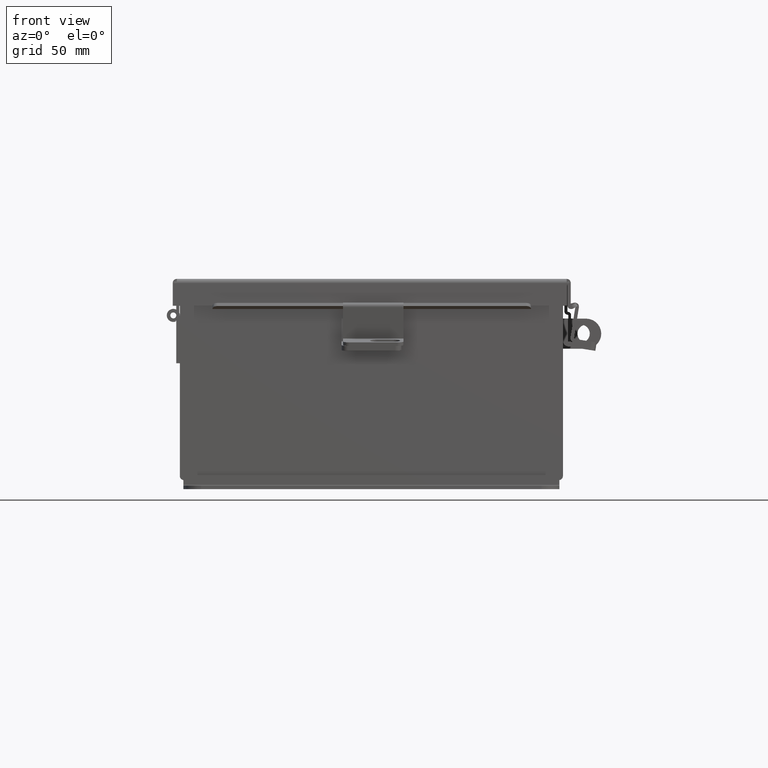
[diagram: clean part render]
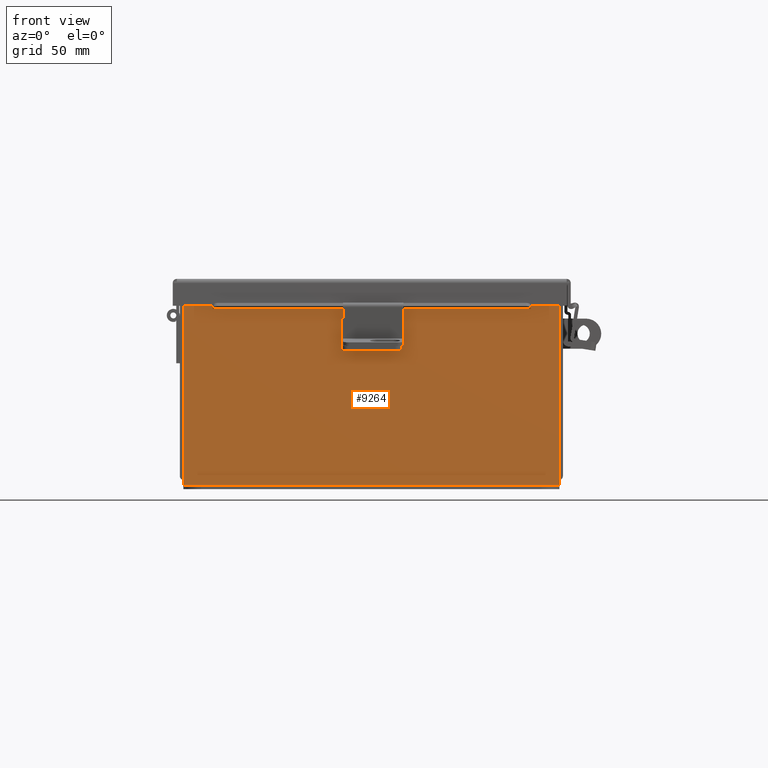
[diagram: same view with one face highlighted and labeled with its STEP entity id]
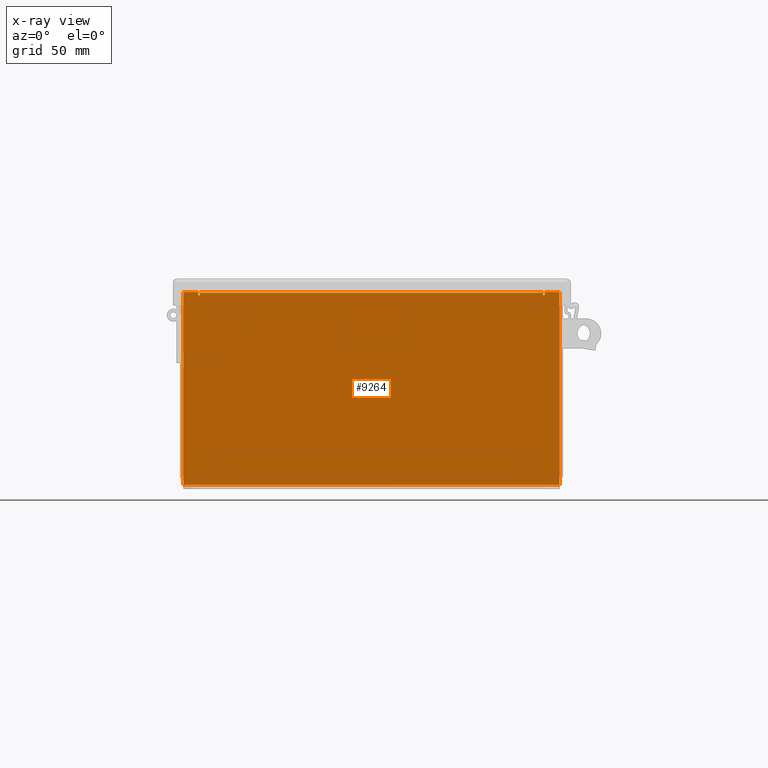
[diagram: x-ray of the same camera — body ghosted, the highlighted face saturated]
A machine part, front view. The second image highlights one B-rep face of the part: STEP entity #9264.
The next image is the same camera in x-ray: the body ghosted, the highlighted face saturated — about 0% of this face is hidden behind the body in this view.
In plain terms, the highlighted planar face has unit normal (-0, 1, -0).
Its self-contained STEP definition (entity closure, byte-faithful):
#551 = CARTESIAN_POINT ( 'NONE',  ( 3.582300000000004900, 0.0000000000000000000, 1.912299999999997400 ) ) ;
#598 = VERTEX_POINT ( 'NONE', #12451 ) ;
#606 = CARTESIAN_POINT ( 'NONE',  ( -3.582299999999994300, 1.092739197465705300E-015, 1.912299999999998600 ) ) ;
#825 = EDGE_LOOP ( 'NONE', ( #10952, #9070, #10028, #15429, #16391, #14323, #13334, #5889, #5058, #4010, #5255, #10614 ) ) ;
#912 = CARTESIAN_POINT ( 'NONE',  ( 0.0000000000000000000, 0.0000000000000000000, 0.0000000000000000000 ) ) ;
#1211 = VERTEX_POINT ( 'NONE', #606 ) ;
#1332 = EDGE_CURVE ( 'NONE', #14787, #10892, #12143, .T. ) ;
#1458 = VECTOR ( 'NONE', #6331, 39.37007874015748100 ) ;
#1622 = VERTEX_POINT ( 'NONE', #9783 ) ;
#2198 = DIRECTION ( 'NONE',  ( 4.910036603141682400E-031, 1.000000000000000000, -0.0000000000000000000 ) ) ;
#2217 = DIRECTION ( 'NONE',  ( 0.0000000000000000000, 0.0000000000000000000, -1.000000000000000000 ) ) ;
#2224 = CARTESIAN_POINT ( 'NONE',  ( 3.619649999999965000, 0.0000000000000000000, -7.867722221753078700E-014 ) ) ;
#2271 = LINE ( 'NONE', #3752, #1458 ) ;
#2974 = EDGE_CURVE ( 'NONE', #11462, #12637, #4449, .T. ) ;
#3048 = VERTEX_POINT ( 'NONE', #10965 ) ;
#3267 = CARTESIAN_POINT ( 'NONE',  ( -3.619649999999994300, 0.0000000000000000000, 1.925299999999998700 ) ) ;
#3546 = DIRECTION ( 'NONE',  ( -2.170286390199978800E-014, -7.888609052210118100E-031, -1.000000000000000000 ) ) ;
#3752 = CARTESIAN_POINT ( 'NONE',  ( -3.582299999999994300, 0.0000000000000000000, 0.0000000000000000000 ) ) ;
#3789 = VECTOR ( 'NONE', #11204, 39.37007874015748100 ) ;
#4010 = ORIENTED_EDGE ( 'NONE', *, *, #7819, .F. ) ;
#4056 = CARTESIAN_POINT ( 'NONE',  ( -3.925299999999994200, 0.0000000000000000000, 1.925299999999998700 ) ) ;
#4200 = CARTESIAN_POINT ( 'NONE',  ( -3.619649999999994300, 0.0000000000000000000, 0.0000000000000000000 ) ) ;
#4294 = EDGE_CURVE ( 'NONE', #4923, #11857, #16050, .T. ) ;
#4358 = CIRCLE ( 'NONE', #14112, 0.01867500000000003900 ) ;
#4449 = LINE ( 'NONE', #12779, #10835 ) ;
#4724 = DIRECTION ( 'NONE',  ( 0.0000000000000000000, 0.0000000000000000000, 1.000000000000000000 ) ) ;
#4848 = EDGE_CURVE ( 'NONE', #1211, #10892, #8661, .T. ) ;
#4923 = VERTEX_POINT ( 'NONE', #6868 ) ;
#5058 = ORIENTED_EDGE ( 'NONE', *, *, #11987, .T. ) ;
#5059 = CARTESIAN_POINT ( 'NONE',  ( -3.925299999999994200, 0.0000000000000000000, 1.925299999999998700 ) ) ;
#5215 = VECTOR ( 'NONE', #14524, 39.37007874015748100 ) ;
#5255 = ORIENTED_EDGE ( 'NONE', *, *, #4294, .T. ) ;
#5813 = VECTOR ( 'NONE', #6840, 39.37007874015748100 ) ;
#5888 = CARTESIAN_POINT ( 'NONE',  ( -3.925299999999998700, -1.092739197465705300E-015, -2.099300000000003500 ) ) ;
#5889 = ORIENTED_EDGE ( 'NONE', *, *, #2974, .T. ) ;
#5929 = VERTEX_POINT ( 'NONE', #3267 ) ;
#6035 = AXIS2_PLACEMENT_3D ( 'NONE', #912, #9971, #2217 ) ;
#6331 = DIRECTION ( 'NONE',  ( 0.0000000000000000000, 0.0000000000000000000, -1.000000000000000000 ) ) ;
#6601 = EDGE_CURVE ( 'NONE', #1211, #7782, #2271, .T. ) ;
#6811 = CARTESIAN_POINT ( 'NONE',  ( 3.619650000000006300, 0.0000000000000000000, 1.925299999999998700 ) ) ;
#6840 = DIRECTION ( 'NONE',  ( 0.0000000000000000000, 0.0000000000000000000, 1.000000000000000000 ) ) ;
#6868 = CARTESIAN_POINT ( 'NONE',  ( -3.925299999999998700, -1.092739197465705300E-015, -2.099300000000003500 ) ) ;
#6924 = DIRECTION ( 'NONE',  ( 4.910036603141682400E-031, 1.000000000000000000, -0.0000000000000000000 ) ) ;
#7422 = VECTOR ( 'NONE', #3546, 39.37007874015748100 ) ;
#7439 = CARTESIAN_POINT ( 'NONE',  ( 3.925300000000005300, 0.0000000000000000000, 1.925299999999998700 ) ) ;
#7782 = VERTEX_POINT ( 'NONE', #15864 ) ;
#7811 = AXIS2_PLACEMENT_3D ( 'NONE', #14435, #6924, #15670 ) ;
#7819 = EDGE_CURVE ( 'NONE', #4923, #598, #14866, .T. ) ;
#7841 = LINE ( 'NONE', #2224, #7422 ) ;
#8254 = VECTOR ( 'NONE', #13474, 39.37007874015748100 ) ;
#8661 = LINE ( 'NONE', #14687, #5215 ) ;
#9070 = ORIENTED_EDGE ( 'NONE', *, *, #11673, .F. ) ;
#9213 = LINE ( 'NONE', #4200, #5813 ) ;
#9264 = ADVANCED_FACE ( 'NONE', ( #14826 ), #16157, .F. ) ;
#9610 = VECTOR ( 'NONE', #11712, 39.37007874015748100 ) ;
#9783 = CARTESIAN_POINT ( 'NONE',  ( 3.619650000000000900, 0.0000000000000000000, 1.874949999999997900 ) ) ;
#9858 = CARTESIAN_POINT ( 'NONE',  ( -3.925299999999994200, 0.0000000000000000000, 1.925299999999998700 ) ) ;
#9959 = CARTESIAN_POINT ( 'NONE',  ( 3.600975000000000900, 0.0000000000000000000, 1.874949999999997500 ) ) ;
#9971 = DIRECTION ( 'NONE',  ( -4.910036603141682400E-031, -1.000000000000000000, -0.0000000000000000000 ) ) ;
#10028 = ORIENTED_EDGE ( 'NONE', *, *, #6601, .F. ) ;
#10614 = ORIENTED_EDGE ( 'NONE', *, *, #14908, .T. ) ;
#10750 = DIRECTION ( 'NONE',  ( 0.0000000000000000000, 0.0000000000000000000, 1.000000000000000000 ) ) ;
#10835 = VECTOR ( 'NONE', #13196, 39.37007874015748100 ) ;
#10892 = VERTEX_POINT ( 'NONE', #551 ) ;
#10952 = ORIENTED_EDGE ( 'NONE', *, *, #14164, .F. ) ;
#10965 = CARTESIAN_POINT ( 'NONE',  ( -3.619649999999998700, 0.0000000000000000000, 1.874949999999997900 ) ) ;
#11192 = DIRECTION ( 'NONE',  ( 0.0000000000000000000, 0.0000000000000000000, -1.000000000000000000 ) ) ;
#11204 = DIRECTION ( 'NONE',  ( 0.0000000000000000000, 0.0000000000000000000, -1.000000000000000000 ) ) ;
#11462 = VERTEX_POINT ( 'NONE', #6811 ) ;
#11602 = CIRCLE ( 'NONE', #7811, 0.01867500000000003900 ) ;
#11673 = EDGE_CURVE ( 'NONE', #7782, #3048, #11602, .T. ) ;
#11712 = DIRECTION ( 'NONE',  ( 1.000000000000000000, 4.910036603141682400E-031, 0.0000000000000000000 ) ) ;
#11857 = VERTEX_POINT ( 'NONE', #9858 ) ;
#11987 = EDGE_CURVE ( 'NONE', #12637, #598, #13927, .T. ) ;
#12143 = LINE ( 'NONE', #12430, #15062 ) ;
#12361 = VECTOR ( 'NONE', #4724, 39.37007874015748100 ) ;
#12430 = CARTESIAN_POINT ( 'NONE',  ( 3.582300000000004900, 0.0000000000000000000, 0.0000000000000000000 ) ) ;
#12451 = CARTESIAN_POINT ( 'NONE',  ( 3.925300000000000900, 7.649174382259936200E-015, -2.099300000000001300 ) ) ;
#12637 = VERTEX_POINT ( 'NONE', #13540 ) ;
#12753 = CARTESIAN_POINT ( 'NONE',  ( 3.582300000000000900, 0.0000000000000000000, 1.874949999999997500 ) ) ;
#12779 = CARTESIAN_POINT ( 'NONE',  ( -3.925299999999994200, 0.0000000000000000000, 1.925299999999998700 ) ) ;
#12902 = LINE ( 'NONE', #4056, #9610 ) ;
#13196 = DIRECTION ( 'NONE',  ( 1.000000000000000000, 4.910036603141682400E-031, 0.0000000000000000000 ) ) ;
#13334 = ORIENTED_EDGE ( 'NONE', *, *, #14482, .F. ) ;
#13474 = DIRECTION ( 'NONE',  ( 1.000000000000000000, 8.208677865577687000E-017, -0.0000000000000000000 ) ) ;
#13540 = CARTESIAN_POINT ( 'NONE',  ( 3.925300000000005300, 0.0000000000000000000, 1.925299999999998700 ) ) ;
#13927 = LINE ( 'NONE', #7439, #3789 ) ;
#14112 = AXIS2_PLACEMENT_3D ( 'NONE', #9959, #2198, #11192 ) ;
#14164 = EDGE_CURVE ( 'NONE', #3048, #5929, #9213, .T. ) ;
#14323 = ORIENTED_EDGE ( 'NONE', *, *, #15304, .F. ) ;
#14435 = CARTESIAN_POINT ( 'NONE',  ( -3.600974999999998700, 0.0000000000000000000, 1.874949999999998600 ) ) ;
#14482 = EDGE_CURVE ( 'NONE', #11462, #1622, #7841, .T. ) ;
#14524 = DIRECTION ( 'NONE',  ( 1.000000000000000000, 4.910036603141682400E-031, -0.0000000000000000000 ) ) ;
#14687 = CARTESIAN_POINT ( 'NONE',  ( -3.582299999999994300, 1.092739197465705300E-015, 1.912299999999998600 ) ) ;
#14787 = VERTEX_POINT ( 'NONE', #12753 ) ;
#14826 = FACE_OUTER_BOUND ( 'NONE', #825, .T. ) ;
#14866 = LINE ( 'NONE', #5888, #8254 ) ;
#14908 = EDGE_CURVE ( 'NONE', #11857, #5929, #12902, .T. ) ;
#15062 = VECTOR ( 'NONE', #10750, 39.37007874015748100 ) ;
#15304 = EDGE_CURVE ( 'NONE', #1622, #14787, #4358, .T. ) ;
#15429 = ORIENTED_EDGE ( 'NONE', *, *, #4848, .T. ) ;
#15670 = DIRECTION ( 'NONE',  ( 0.0000000000000000000, 0.0000000000000000000, -1.000000000000000000 ) ) ;
#15864 = CARTESIAN_POINT ( 'NONE',  ( -3.582299999999998700, 0.0000000000000000000, 1.874949999999998600 ) ) ;
#16050 = LINE ( 'NONE', #5059, #12361 ) ;
#16157 = PLANE ( 'NONE',  #6035 ) ;
#16391 = ORIENTED_EDGE ( 'NONE', *, *, #1332, .F. ) ;